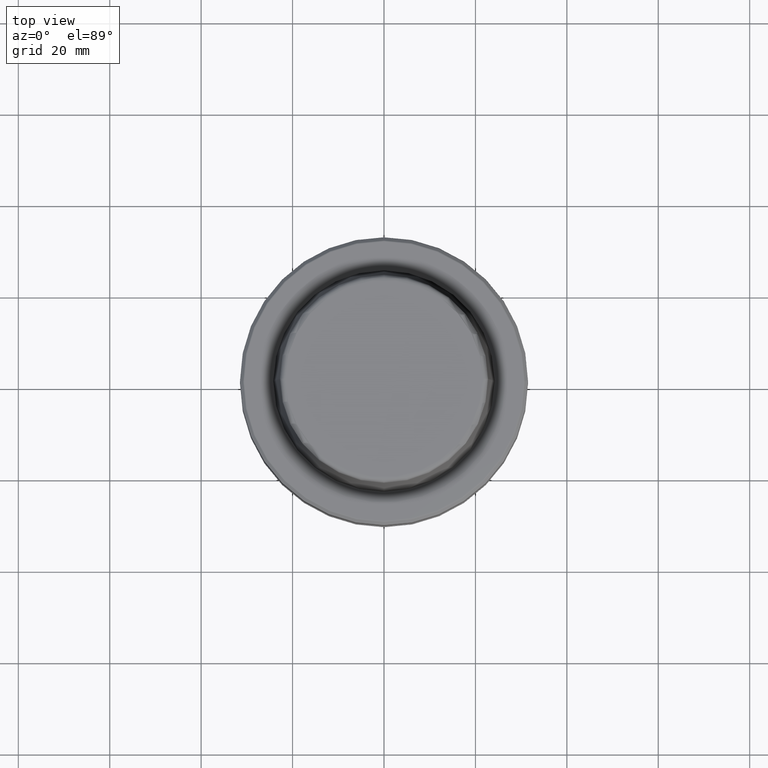
[diagram: clean part render]
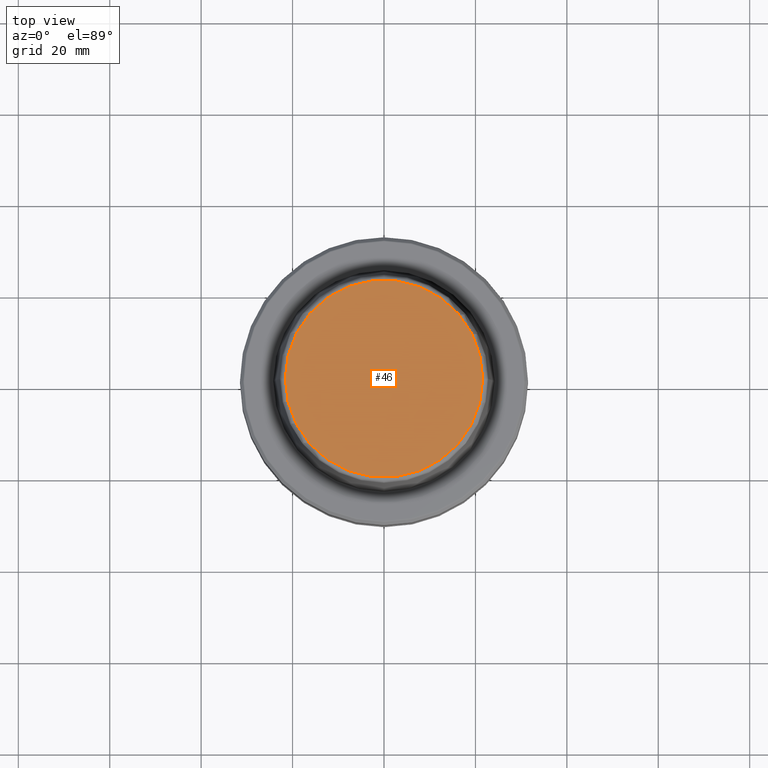
[diagram: same view with one face highlighted and labeled with its STEP entity id]
A machine part, top view. The second image highlights one B-rep face of the part: STEP entity #46.
In plain terms, the highlighted planar face has unit normal (0, 0, -1).
Its self-contained STEP definition (entity closure, byte-faithful):
#2 = ORIENTED_EDGE ( 'NONE', *, *, #456, .T. ) ;
#6 = VERTEX_POINT ( 'NONE', #15 ) ;
#15 = CARTESIAN_POINT ( 'NONE',  ( 21.58108272732117100, 0.0000000000000000000, 31.89999999999999900 ) ) ;
#29 = AXIS2_PLACEMENT_3D ( 'NONE', #918, #1031, #432 ) ;
#46 = ADVANCED_FACE ( 'NONE', ( #1147 ), #1130, .F. ) ;
#119 = CIRCLE ( 'NONE', #846, 21.58108272732117100 ) ;
#209 = DIRECTION ( 'NONE',  ( -0.0000000000000000000, -0.0000000000000000000, 1.000000000000000000 ) ) ;
#250 = CARTESIAN_POINT ( 'NONE',  ( -21.58108272732117100, 2.716307157494421400E-015, 31.89999999999999900 ) ) ;
#374 = DIRECTION ( 'NONE',  ( 1.000000000000000000, 0.0000000000000000000, 0.0000000000000000000 ) ) ;
#432 = DIRECTION ( 'NONE',  ( -1.000000000000000000, 0.0000000000000000000, -0.0000000000000000000 ) ) ;
#456 = EDGE_CURVE ( 'NONE', #6, #1193, #1032, .T. ) ;
#483 = DIRECTION ( 'NONE',  ( -0.0000000000000000000, -0.0000000000000000000, 1.000000000000000000 ) ) ;
#614 = DIRECTION ( 'NONE',  ( 1.000000000000000000, 0.0000000000000000000, 0.0000000000000000000 ) ) ;
#684 = AXIS2_PLACEMENT_3D ( 'NONE', #888, #209, #614 ) ;
#846 = AXIS2_PLACEMENT_3D ( 'NONE', #1085, #483, #374 ) ;
#888 = CARTESIAN_POINT ( 'NONE',  ( 0.0000000000000000000, 0.0000000000000000000, 31.89999999999999900 ) ) ;
#918 = CARTESIAN_POINT ( 'NONE',  ( 0.0000000000000000000, 0.0000000000000000000, 31.89999999999999900 ) ) ;
#935 = EDGE_CURVE ( 'NONE', #1193, #6, #119, .T. ) ;
#1009 = EDGE_LOOP ( 'NONE', ( #2, #1047 ) ) ;
#1031 = DIRECTION ( 'NONE',  ( 0.0000000000000000000, 0.0000000000000000000, -1.000000000000000000 ) ) ;
#1032 = CIRCLE ( 'NONE', #684, 21.58108272732117100 ) ;
#1047 = ORIENTED_EDGE ( 'NONE', *, *, #935, .T. ) ;
#1085 = CARTESIAN_POINT ( 'NONE',  ( 0.0000000000000000000, 0.0000000000000000000, 31.89999999999999900 ) ) ;
#1130 = PLANE ( 'NONE',  #29 ) ;
#1147 = FACE_OUTER_BOUND ( 'NONE', #1009, .T. ) ;
#1193 = VERTEX_POINT ( 'NONE', #250 ) ;